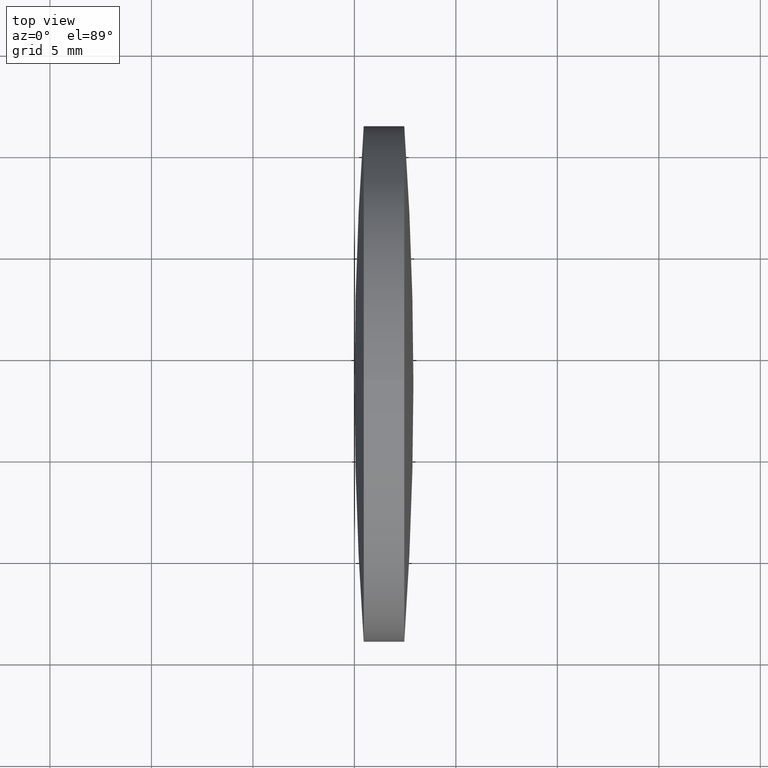
[diagram: clean part render]
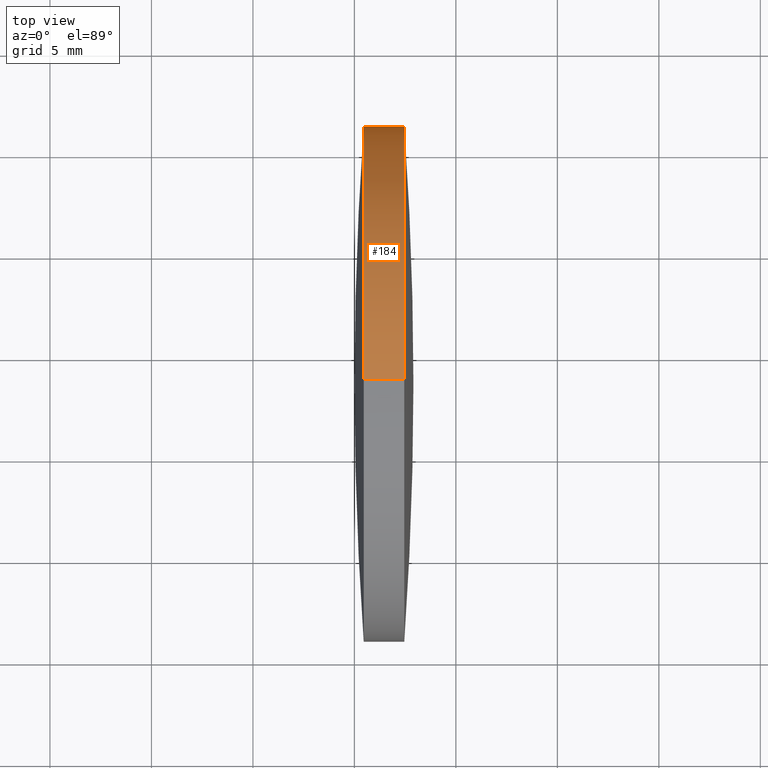
[diagram: same view with one face highlighted and labeled with its STEP entity id]
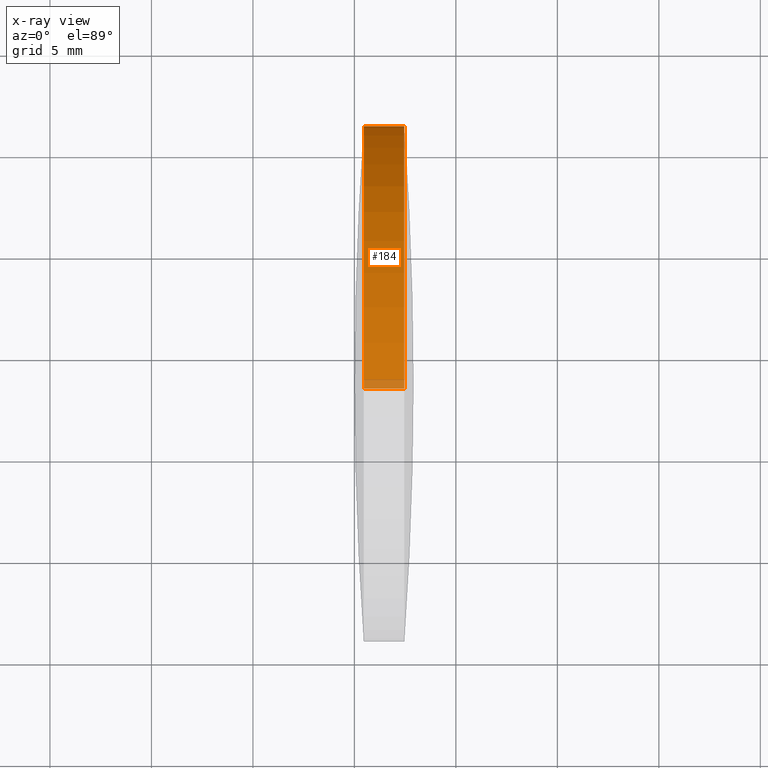
[diagram: x-ray of the same camera — body ghosted, the highlighted face saturated]
A machine part, top view. The second image highlights one B-rep face of the part: STEP entity #184.
The next image is the same camera in x-ray: the body ghosted, the highlighted face saturated — about 3% of this face is hidden behind the body in this view.
In plain terms, the highlighted cylindrical surface (partial cylindrical patch) has radius 12.7 mm, axis along (-1, -0, -0).
Its self-contained STEP definition (entity closure, byte-faithful):
#7 = EDGE_CURVE ( 'NONE', #18, #333, #209, .T. ) ;
#8 = CYLINDRICAL_SURFACE ( 'NONE', #82, 12.69999999999999600 ) ;
#11 = DIRECTION ( 'NONE',  ( -1.000000000000000000, -0.0000000000000000000, -0.0000000000000000000 ) ) ;
#13 = EDGE_CURVE ( 'NONE', #88, #316, #131, .T. ) ;
#18 = VERTEX_POINT ( 'NONE', #232 ) ;
#26 = LINE ( 'NONE', #294, #201 ) ;
#37 = DIRECTION ( 'NONE',  ( -1.000000000000000000, -0.0000000000000000000, -0.0000000000000000000 ) ) ;
#43 = ORIENTED_EDGE ( 'NONE', *, *, #302, .F. ) ;
#47 = ORIENTED_EDGE ( 'NONE', *, *, #273, .F. ) ;
#49 = DIRECTION ( 'NONE',  ( 0.0000000000000000000, 0.0000000000000000000, 1.000000000000000000 ) ) ;
#57 = VERTEX_POINT ( 'NONE', #277 ) ;
#58 = CARTESIAN_POINT ( 'NONE',  ( 87.45786520323396500, 61.31611302318459900, 1.555301434917100400E-015 ) ) ;
#68 = ORIENTED_EDGE ( 'NONE', *, *, #265, .T. ) ;
#82 = AXIS2_PLACEMENT_3D ( 'NONE', #100, #262, #211 ) ;
#86 = VECTOR ( 'NONE', #37, 1000.000000000000000 ) ;
#88 = VERTEX_POINT ( 'NONE', #58 ) ;
#91 = DIRECTION ( 'NONE',  ( 0.0000000000000000000, 0.0000000000000000000, 1.000000000000000000 ) ) ;
#97 = CARTESIAN_POINT ( 'NONE',  ( 87.45786520323396500, 48.61611302318478100, 0.0000000000000000000 ) ) ;
#100 = CARTESIAN_POINT ( 'NONE',  ( 79.30540135083715800, 48.61611302318478100, 0.0000000000000000000 ) ) ;
#109 = DIRECTION ( 'NONE',  ( -1.000000000000000000, -0.0000000000000000000, -0.0000000000000000000 ) ) ;
#111 = FACE_OUTER_BOUND ( 'NONE', #289, .T. ) ;
#112 = ORIENTED_EDGE ( 'NONE', *, *, #7, .F. ) ;
#126 = EDGE_CURVE ( 'NONE', #316, #333, #327, .T. ) ;
#129 = DIRECTION ( 'NONE',  ( -1.000000000000000000, -0.0000000000000000000, -0.0000000000000000000 ) ) ;
#131 = CIRCLE ( 'NONE', #207, 12.69999999999999600 ) ;
#143 = DIRECTION ( 'NONE',  ( -1.000000000000000000, -0.0000000000000000000, -0.0000000000000000000 ) ) ;
#145 = DIRECTION ( 'NONE',  ( 0.0000000000000000000, 0.0000000000000000000, 1.000000000000000000 ) ) ;
#162 = DIRECTION ( 'NONE',  ( -1.000000000000000000, -0.0000000000000000000, -0.0000000000000000000 ) ) ;
#167 = CARTESIAN_POINT ( 'NONE',  ( 85.45852234609111500, 48.61611302318478100, 0.0000000000000000000 ) ) ;
#176 = VERTEX_POINT ( 'NONE', #179 ) ;
#179 = CARTESIAN_POINT ( 'NONE',  ( 87.45786520323396500, 48.61611302318478100, 12.69999999999999600 ) ) ;
#184 = ADVANCED_FACE ( 'NONE', ( #111 ), #8, .T. ) ;
#191 = CARTESIAN_POINT ( 'NONE',  ( 79.30540135083715800, 48.61611302318478100, -12.69999999999999600 ) ) ;
#193 = CIRCLE ( 'NONE', #328, 12.69999999999999600 ) ;
#201 = VECTOR ( 'NONE', #162, 1000.000000000000000 ) ;
#207 = AXIS2_PLACEMENT_3D ( 'NONE', #97, #109, #290 ) ;
#209 = CIRCLE ( 'NONE', #241, 12.69999999999999600 ) ;
#211 = DIRECTION ( 'NONE',  ( 0.0000000000000000000, 0.0000000000000000000, 1.000000000000000000 ) ) ;
#212 = AXIS2_PLACEMENT_3D ( 'NONE', #167, #11, #91 ) ;
#214 = CARTESIAN_POINT ( 'NONE',  ( 87.45786520323396500, 48.61611302318478100, -12.69999999999999600 ) ) ;
#232 = CARTESIAN_POINT ( 'NONE',  ( 85.45852234609110100, 61.31611302318462700, 0.0000000000000000000 ) ) ;
#241 = AXIS2_PLACEMENT_3D ( 'NONE', #283, #129, #49 ) ;
#251 = ORIENTED_EDGE ( 'NONE', *, *, #13, .T. ) ;
#254 = CIRCLE ( 'NONE', #212, 12.69999999999999600 ) ;
#262 = DIRECTION ( 'NONE',  ( -1.000000000000000000, -0.0000000000000000000, -0.0000000000000000000 ) ) ;
#265 = EDGE_CURVE ( 'NONE', #176, #88, #193, .T. ) ;
#273 = EDGE_CURVE ( 'NONE', #176, #57, #26, .T. ) ;
#277 = CARTESIAN_POINT ( 'NONE',  ( 85.45852234609111500, 48.61611302318478100, 12.69999999999999600 ) ) ;
#283 = CARTESIAN_POINT ( 'NONE',  ( 85.45852234609111500, 48.61611302318478100, 0.0000000000000000000 ) ) ;
#289 = EDGE_LOOP ( 'NONE', ( #251, #329, #112, #43, #47, #68 ) ) ;
#290 = DIRECTION ( 'NONE',  ( 0.0000000000000000000, 0.0000000000000000000, 1.000000000000000000 ) ) ;
#294 = CARTESIAN_POINT ( 'NONE',  ( 79.30540135083715800, 48.61611302318478100, 12.69999999999999600 ) ) ;
#297 = CARTESIAN_POINT ( 'NONE',  ( 85.45852234609111500, 48.61611302318478100, -12.69999999999999600 ) ) ;
#300 = CARTESIAN_POINT ( 'NONE',  ( 87.45786520323396500, 48.61611302318478100, 0.0000000000000000000 ) ) ;
#302 = EDGE_CURVE ( 'NONE', #57, #18, #254, .T. ) ;
#316 = VERTEX_POINT ( 'NONE', #214 ) ;
#327 = LINE ( 'NONE', #191, #86 ) ;
#328 = AXIS2_PLACEMENT_3D ( 'NONE', #300, #143, #145 ) ;
#329 = ORIENTED_EDGE ( 'NONE', *, *, #126, .T. ) ;
#333 = VERTEX_POINT ( 'NONE', #297 ) ;